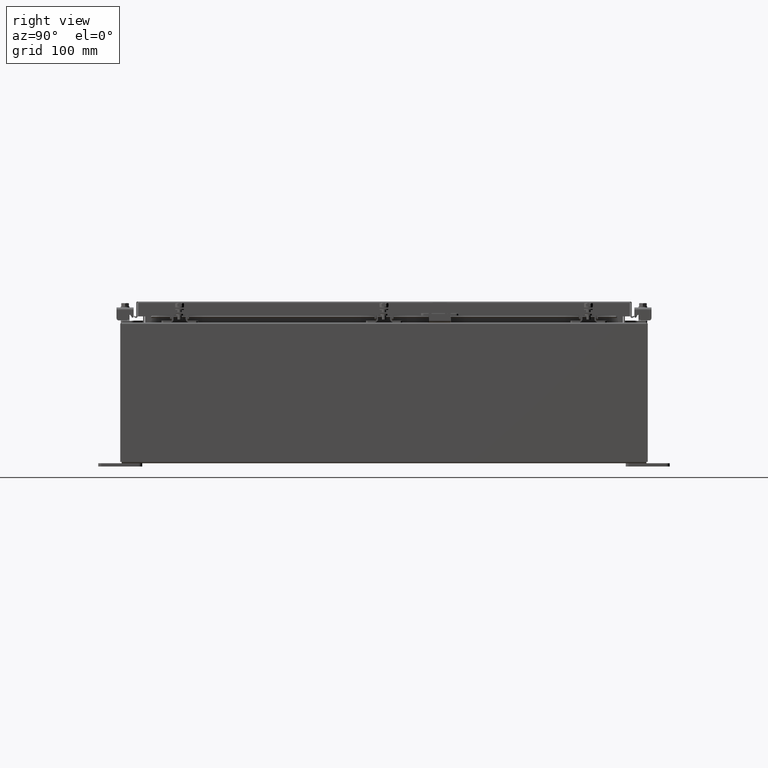
[diagram: clean part render]
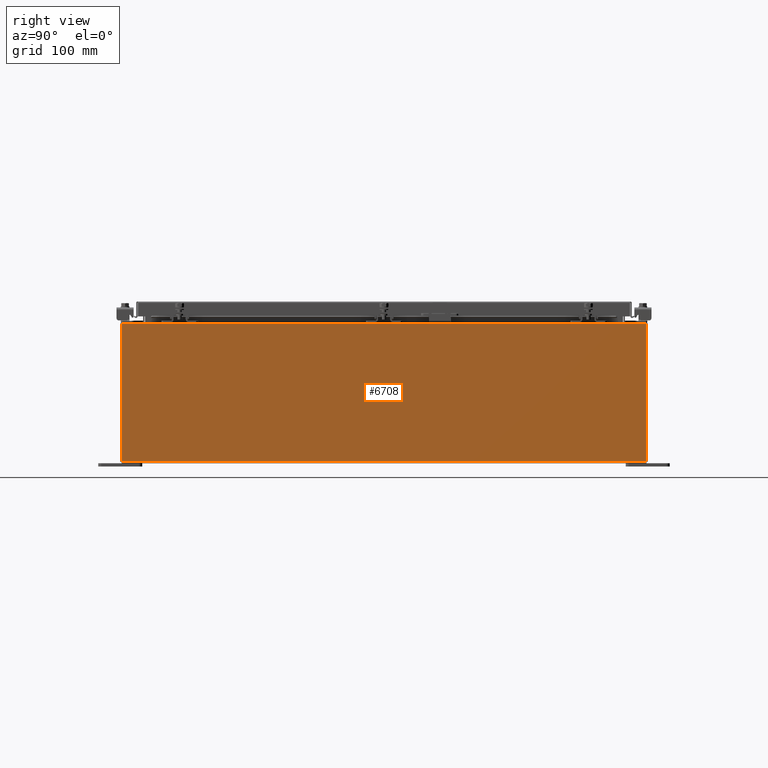
[diagram: same view with one face highlighted and labeled with its STEP entity id]
A machine part, right view. The second image highlights one B-rep face of the part: STEP entity #6708.
In plain terms, the highlighted planar face has unit normal (-1, 0, 0).
Its self-contained STEP definition (entity closure, byte-faithful):
#130 = DIRECTION ( 'NONE',  ( -0.0000000000000000000, -1.000000000000000000, -0.0000000000000000000 ) ) ;
#1296 = DIRECTION ( 'NONE',  ( -1.000000000000000000, 0.0000000000000000000, 3.584876173029202900E-015 ) ) ;
#2414 = CARTESIAN_POINT ( 'NONE',  ( 11.99999999999999600, 14.92530000000000000, -4.328271664961816700E-014 ) ) ;
#3025 = CARTESIAN_POINT ( 'NONE',  ( 12.00000000000002500, -14.92530000000000200, 7.837599999999998300 ) ) ;
#3581 = VECTOR ( 'NONE', #130, 39.37007874015748100 ) ;
#3774 = VECTOR ( 'NONE', #7032, 39.37007874015748100 ) ;
#4472 = LINE ( 'NONE', #23535, #3581 ) ;
#5349 = DIRECTION ( 'NONE',  ( 3.584876173029202900E-015, 0.0000000000000000000, 1.000000000000000000 ) ) ;
#6075 = CARTESIAN_POINT ( 'NONE',  ( 11.99999999999999600, -14.92530000000000000, -4.328271664961816700E-014 ) ) ;
#6708 = ADVANCED_FACE ( 'NONE', ( #35570 ), #15845, .F. ) ;
#7008 = VECTOR ( 'NONE', #5349, 39.37007874015748100 ) ;
#7032 = DIRECTION ( 'NONE',  ( 2.624627117933885000E-031, -1.000000000000000000, 7.321388497823866900E-017 ) ) ;
#10311 = ORIENTED_EDGE ( 'NONE', *, *, #35125, .T. ) ;
#10507 = EDGE_CURVE ( 'NONE', #29796, #31964, #27132, .T. ) ;
#12620 = ORIENTED_EDGE ( 'NONE', *, *, #12799, .T. ) ;
#12799 = EDGE_CURVE ( 'NONE', #34110, #35142, #4472, .T. ) ;
#14077 = CARTESIAN_POINT ( 'NONE',  ( 12.00000000000002500, 14.92530000000000200, 7.837599999999992100 ) ) ;
#14544 = ORIENTED_EDGE ( 'NONE', *, *, #10507, .F. ) ;
#14812 = LINE ( 'NONE', #2414, #7008 ) ;
#15845 = PLANE ( 'NONE',  #24979 ) ;
#15989 = CARTESIAN_POINT ( 'NONE',  ( 11.99999999999999600, -14.92530000000000000, 0.01299999999999985200 ) ) ;
#17442 = EDGE_LOOP ( 'NONE', ( #12620, #10311, #14544, #37507 ) ) ;
#20684 = DIRECTION ( 'NONE',  ( -3.584876173029202900E-015, 0.0000000000000000000, -1.000000000000000000 ) ) ;
#21771 = DIRECTION ( 'NONE',  ( 3.584876173029202900E-015, 0.0000000000000000000, 1.000000000000000000 ) ) ;
#23535 = CARTESIAN_POINT ( 'NONE',  ( 12.00000000000002500, 14.92530000000000200, 7.837599999999992100 ) ) ;
#24271 = LINE ( 'NONE', #6075, #31132 ) ;
#24979 = AXIS2_PLACEMENT_3D ( 'NONE', #36386, #1296, #21771 ) ;
#27132 = LINE ( 'NONE', #15989, #3774 ) ;
#29796 = VERTEX_POINT ( 'NONE', #30390 ) ;
#30390 = CARTESIAN_POINT ( 'NONE',  ( 11.99999999999999600, 14.92530000000000000, 0.01299999999999766600 ) ) ;
#31132 = VECTOR ( 'NONE', #20684, 39.37007874015748100 ) ;
#31148 = EDGE_CURVE ( 'NONE', #29796, #34110, #14812, .T. ) ;
#31964 = VERTEX_POINT ( 'NONE', #32842 ) ;
#32842 = CARTESIAN_POINT ( 'NONE',  ( 11.99999999999999600, -14.92530000000000000, 0.01299999999999997000 ) ) ;
#34110 = VERTEX_POINT ( 'NONE', #14077 ) ;
#35125 = EDGE_CURVE ( 'NONE', #35142, #31964, #24271, .T. ) ;
#35142 = VERTEX_POINT ( 'NONE', #3025 ) ;
#35570 = FACE_OUTER_BOUND ( 'NONE', #17442, .T. ) ;
#36386 = CARTESIAN_POINT ( 'NONE',  ( 11.99999999999999600, 0.0000000000000000000, -4.328271664961816700E-014 ) ) ;
#37507 = ORIENTED_EDGE ( 'NONE', *, *, #31148, .T. ) ;